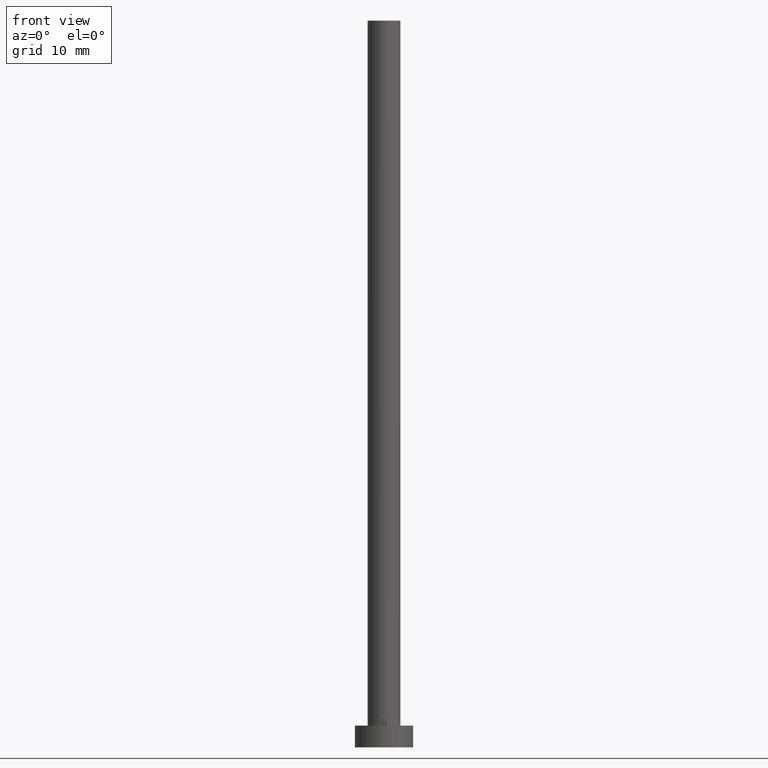
[diagram: clean part render]
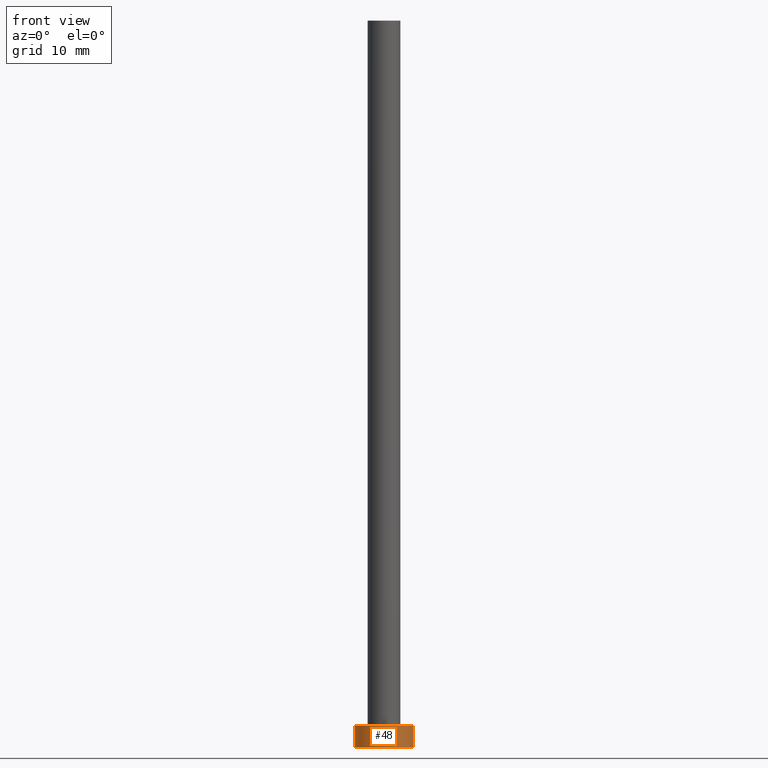
[diagram: same view with one face highlighted and labeled with its STEP entity id]
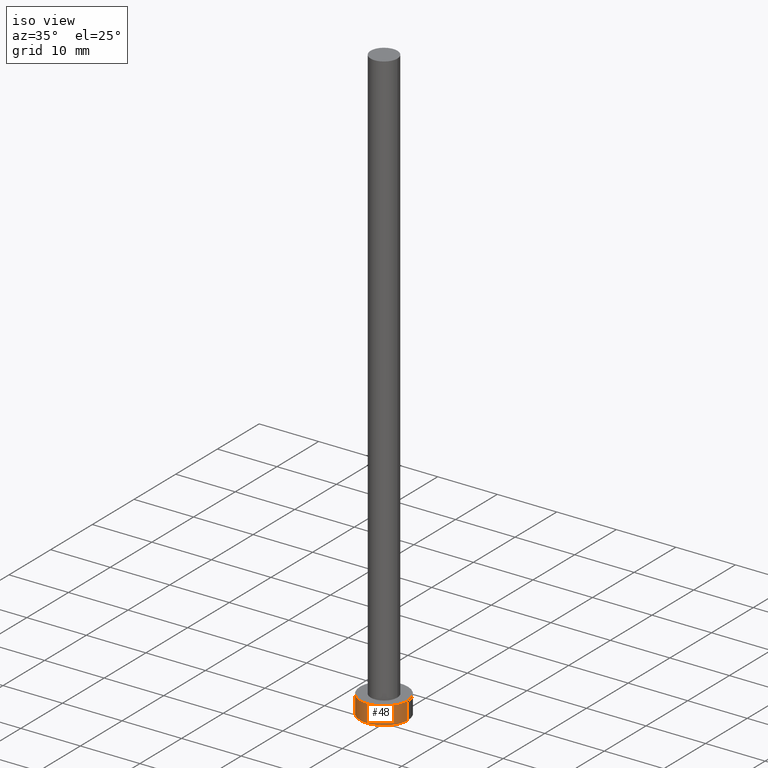
[diagram: same view with one face highlighted and labeled with its STEP entity id]
A machine part, front view. The second image highlights one B-rep face of the part: STEP entity #48.
A second angle (iso view) of the same face is appended — the face is thin or edge-on in the first view.
In plain terms, the highlighted cylindrical surface (edge-blend (fillet) strip) has radius 4 mm, axis along (-0, -0, -1).
Its self-contained STEP definition (entity closure, byte-faithful):
#2 = CARTESIAN_POINT ( 'NONE',  ( 4.000000000000000000, 4.898587196589412829E-16, 3.000000000000000000 ) ) ;
#5 = DIRECTION ( 'NONE',  ( 1.000000000000000000, 0.000000000000000000, 0.000000000000000000 ) ) ;
#12 = VERTEX_POINT ( 'NONE', #93 ) ;
#16 = EDGE_CURVE ( 'NONE', #12, #210, #58, .T. ) ;
#24 = LINE ( 'NONE', #240, #221 ) ;
#25 = VECTOR ( 'NONE', #136, 1000.000000000000000 ) ;
#27 = DIRECTION ( 'NONE',  ( -1.000000000000000000, 0.000000000000000000, 0.000000000000000000 ) ) ;
#33 = CIRCLE ( 'NONE', #208, 4.000000000000000000 ) ;
#44 = DIRECTION ( 'NONE',  ( 0.000000000000000000, 0.000000000000000000, 1.000000000000000000 ) ) ;
#48 = ADVANCED_FACE ( 'NONE', ( #227 ), #54, .T. ) ;
#54 = CYLINDRICAL_SURFACE ( 'NONE', #89, 4.000000000000000000 ) ;
#58 = LINE ( 'NONE', #228, #25 ) ;
#63 = DIRECTION ( 'NONE',  ( 1.000000000000000000, 0.000000000000000000, 0.000000000000000000 ) ) ;
#64 = EDGE_CURVE ( 'NONE', #210, #96, #199, .T. ) ;
#74 = ORIENTED_EDGE ( 'NONE', *, *, #97, .F. ) ;
#78 = DIRECTION ( 'NONE',  ( -0.000000000000000000, -0.000000000000000000, -1.000000000000000000 ) ) ;
#83 = CARTESIAN_POINT ( 'NONE',  ( 0.000000000000000000, 0.000000000000000000, 3.000000000000000000 ) ) ;
#89 = AXIS2_PLACEMENT_3D ( 'NONE', #83, #123, #27 ) ;
#91 = VERTEX_POINT ( 'NONE', #2 ) ;
#93 = CARTESIAN_POINT ( 'NONE',  ( -4.000000000000000000, 0.000000000000000000, 3.000000000000000000 ) ) ;
#95 = ORIENTED_EDGE ( 'NONE', *, *, #64, .T. ) ;
#96 = VERTEX_POINT ( 'NONE', #175 ) ;
#97 = EDGE_CURVE ( 'NONE', #91, #96, #24, .T. ) ;
#104 = CARTESIAN_POINT ( 'NONE',  ( 0.000000000000000000, 0.000000000000000000, 0.000000000000000000 ) ) ;
#123 = DIRECTION ( 'NONE',  ( -0.000000000000000000, -0.000000000000000000, -1.000000000000000000 ) ) ;
#136 = DIRECTION ( 'NONE',  ( -0.000000000000000000, -0.000000000000000000, -1.000000000000000000 ) ) ;
#142 = CARTESIAN_POINT ( 'NONE',  ( 0.000000000000000000, 0.000000000000000000, 3.000000000000000000 ) ) ;
#165 = CARTESIAN_POINT ( 'NONE',  ( -4.000000000000000000, 0.000000000000000000, 0.000000000000000000 ) ) ;
#172 = ORIENTED_EDGE ( 'NONE', *, *, #16, .T. ) ;
#175 = CARTESIAN_POINT ( 'NONE',  ( 4.000000000000000000, 4.898587196589412829E-16, 0.000000000000000000 ) ) ;
#178 = DIRECTION ( 'NONE',  ( 0.000000000000000000, 0.000000000000000000, 1.000000000000000000 ) ) ;
#199 = CIRCLE ( 'NONE', #229, 4.000000000000000000 ) ;
#204 = EDGE_CURVE ( 'NONE', #12, #91, #33, .T. ) ;
#208 = AXIS2_PLACEMENT_3D ( 'NONE', #142, #178, #5 ) ;
#210 = VERTEX_POINT ( 'NONE', #165 ) ;
#212 = ORIENTED_EDGE ( 'NONE', *, *, #204, .F. ) ;
#221 = VECTOR ( 'NONE', #78, 1000.000000000000000 ) ;
#225 = EDGE_LOOP ( 'NONE', ( #74, #212, #172, #95 ) ) ;
#227 = FACE_OUTER_BOUND ( 'NONE', #225, .T. ) ;
#228 = CARTESIAN_POINT ( 'NONE',  ( -4.000000000000000000, 0.000000000000000000, 3.000000000000000000 ) ) ;
#229 = AXIS2_PLACEMENT_3D ( 'NONE', #104, #44, #63 ) ;
#240 = CARTESIAN_POINT ( 'NONE',  ( 4.000000000000000000, 4.898587196589412829E-16, 3.000000000000000000 ) ) ;